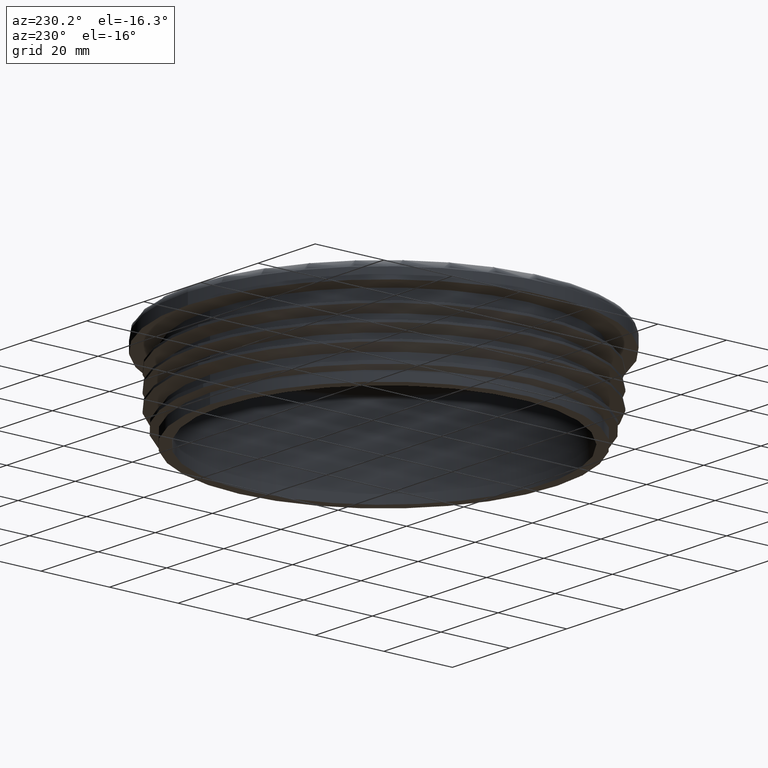
[diagram: clean part render]
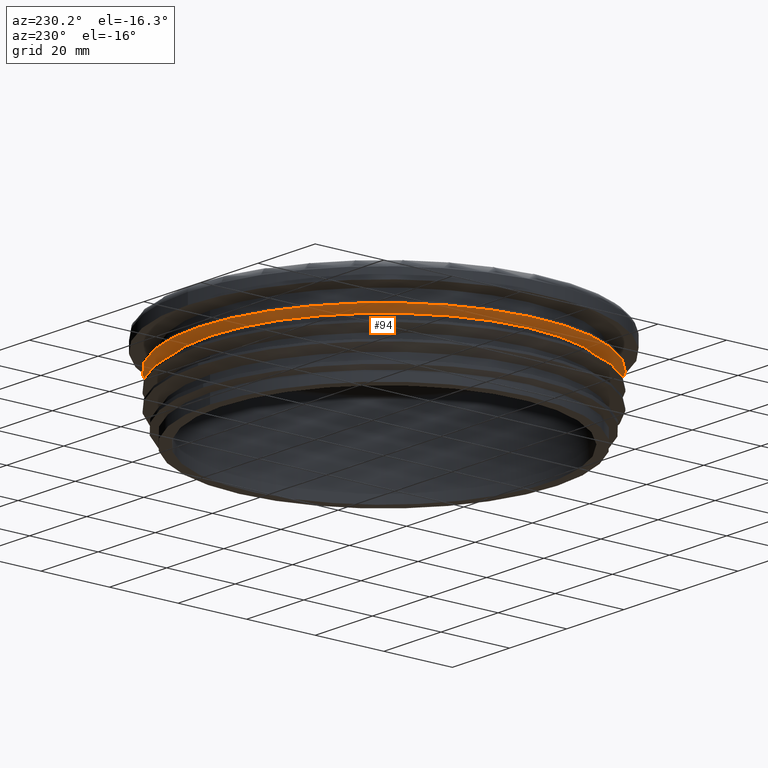
[diagram: same view with one face highlighted and labeled with its STEP entity id]
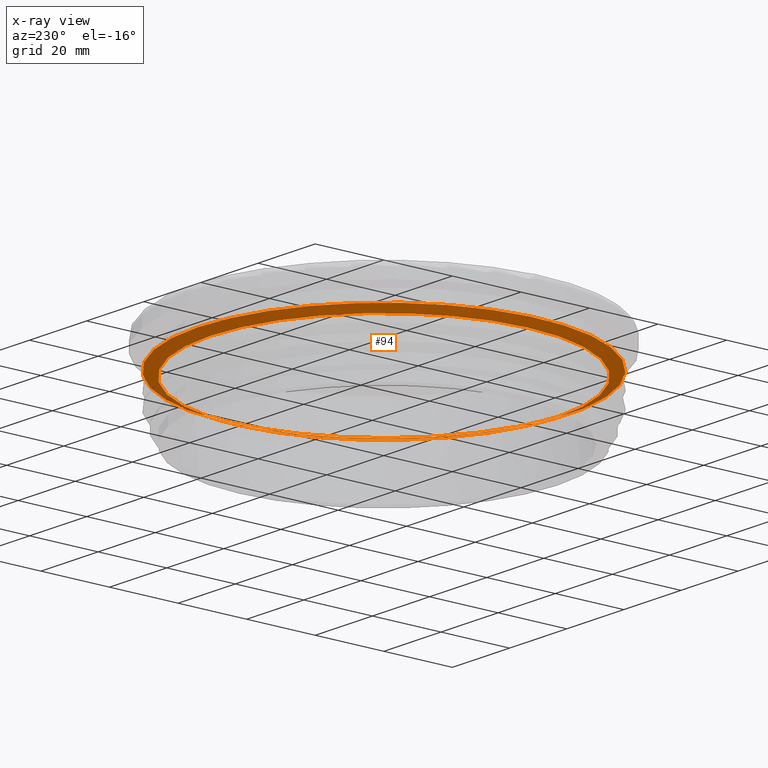
[diagram: x-ray of the same camera — body ghosted, the highlighted face saturated]
A machine part, auxiliary view. The second image highlights one B-rep face of the part: STEP entity #94.
The next image is the same camera in x-ray: the body ghosted, the highlighted face saturated — about 6% of this face is hidden behind the body in this view.
In plain terms, the highlighted conical surface has half-angle 68 deg.
Its self-contained STEP definition (entity closure, byte-faithful):
#94 = ADVANCED_FACE( '', ( #234, #235 ), #236, .T. );
#234 = FACE_BOUND( '', #578, .T. );
#235 = FACE_OUTER_BOUND( '', #579, .T. );
#236 = CONICAL_SURFACE( '', #580, 54.1500000000000, 1.18682389135614 );
#578 = EDGE_LOOP( '', ( #1167 ) );
#579 = EDGE_LOOP( '', ( #1168 ) );
#580 = AXIS2_PLACEMENT_3D( '', #1169, #1170, #1171 );
#1167 = ORIENTED_EDGE( '', *, *, #1801, .F. );
#1168 = ORIENTED_EDGE( '', *, *, #1800, .T. );
#1169 = CARTESIAN_POINT( '', ( 0.000000000000000, -2.80796616574706E-016, 17.4140917904231 ) );
#1170 = DIRECTION( '', ( 0.000000000000000, 6.12303176911189E-017, 1.00000000000000 ) );
#1171 = DIRECTION( '', ( 0.000000000000000, -1.00000000000000, 6.12303176911189E-017 ) );
#1800 = EDGE_CURVE( '', #2112, #2112, #2113, .T. );
#1801 = EDGE_CURVE( '', #2114, #2114, #2115, .T. );
#2112 = VERTEX_POINT( '', #3242 );
#2113 = CIRCLE( '', #3243, 54.1500000000000 );
#2114 = VERTEX_POINT( '', #3244 );
#2115 = CIRCLE( '', #3245, 50.6500000000000 );
#3242 = CARTESIAN_POINT( '', ( 0.000000000000000, 54.1500000000000, 17.4140917904231 ) );
#3243 = AXIS2_PLACEMENT_3D( '', #3724, #3725, #3726 );
#3244 = CARTESIAN_POINT( '', ( 0.000000000000000, 50.6500000000000, 16.0000000000000 ) );
#3245 = AXIS2_PLACEMENT_3D( '', #3727, #3728, #3729 );
#3724 = CARTESIAN_POINT( '', ( 0.000000000000000, -2.80796616574706E-016, 17.4140917904231 ) );
#3725 = DIRECTION( '', ( 0.000000000000000, -6.12303176911189E-017, -1.00000000000000 ) );
#3726 = DIRECTION( '', ( 0.000000000000000, 1.00000000000000, -6.12303176911189E-017 ) );
#3727 = CARTESIAN_POINT( '', ( 0.000000000000000, -3.67381906146714E-016, 16.0000000000000 ) );
#3728 = DIRECTION( '', ( 0.000000000000000, -6.12303176911189E-017, -1.00000000000000 ) );
#3729 = DIRECTION( '', ( 0.000000000000000, 1.00000000000000, -6.12303176911189E-017 ) );